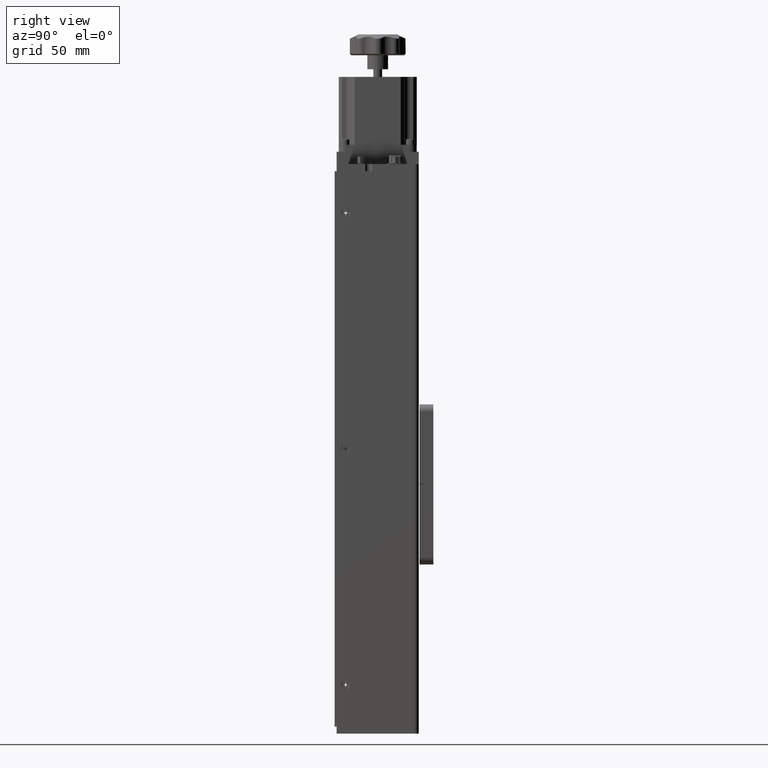
[diagram: clean part render]
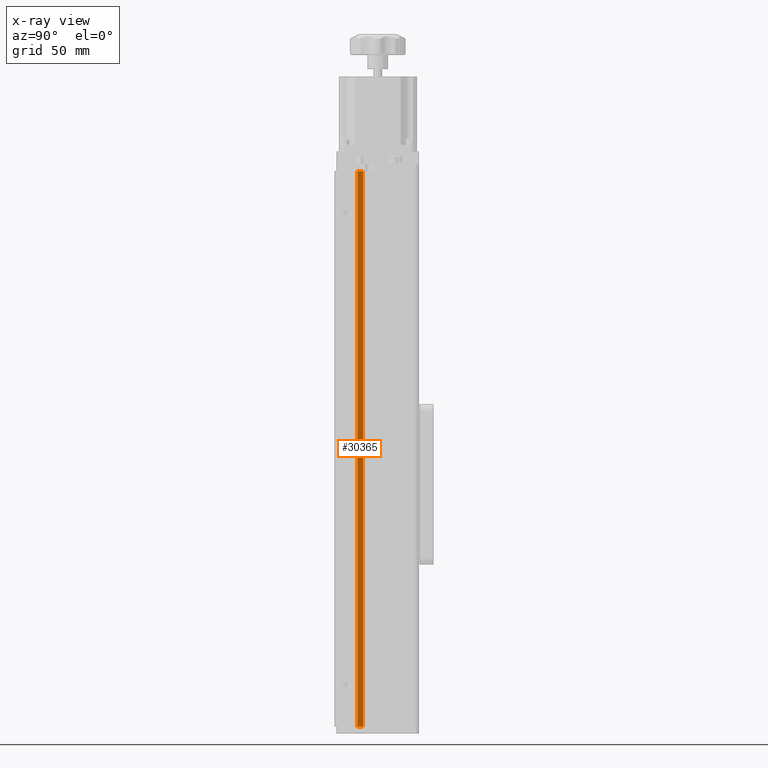
[diagram: x-ray — body ghosted, one internal face saturated and labeled with its STEP entity id]
A machine part, right view, then the same camera in x-ray: the body is ghosted and one INTERNAL B-rep face — a face not visible from any outside direction — is saturated and labeled: STEP entity #30365.
In plain terms, the highlighted planar face has unit normal (1, 0, -0).
Its self-contained STEP definition (entity closure, byte-faithful):
#1368 = VERTEX_POINT ( 'NONE', #25179 ) ;
#1400 = CARTESIAN_POINT ( 'NONE',  ( 56.71988329892532500, 10.39557601279240700, 136.7392992934879300 ) ) ;
#3234 = DIRECTION ( 'NONE',  ( -0.0000000000000000000, 0.0000000000000000000, -1.000000000000000000 ) ) ;
#5082 = LINE ( 'NONE', #19918, #31124 ) ;
#5949 = LINE ( 'NONE', #1400, #22964 ) ;
#6497 = PLANE ( 'NONE',  #37337 ) ;
#8709 = ORIENTED_EDGE ( 'NONE', *, *, #38665, .T. ) ;
#9966 = CARTESIAN_POINT ( 'NONE',  ( 56.71988329892532500, 6.395576012792368200, 136.7392992934879300 ) ) ;
#10040 = VERTEX_POINT ( 'NONE', #40353 ) ;
#10188 = CARTESIAN_POINT ( 'NONE',  ( 56.71988329892532500, 10.39557601279240700, 136.7392992934879300 ) ) ;
#10420 = EDGE_CURVE ( 'NONE', #16761, #1368, #34229, .T. ) ;
#12499 = CARTESIAN_POINT ( 'NONE',  ( 56.71988329892532500, 6.395576012792368200, 136.7392992934879300 ) ) ;
#14509 = ORIENTED_EDGE ( 'NONE', *, *, #10420, .F. ) ;
#16165 = VECTOR ( 'NONE', #33734, 1000.000000000000000 ) ;
#16761 = VERTEX_POINT ( 'NONE', #12499 ) ;
#19918 = CARTESIAN_POINT ( 'NONE',  ( 56.71988329892532500, 10.39557601279240700, 136.7392992934879300 ) ) ;
#20483 = ORIENTED_EDGE ( 'NONE', *, *, #31890, .F. ) ;
#22964 = VECTOR ( 'NONE', #28743, 1000.000000000000000 ) ;
#23579 = DIRECTION ( 'NONE',  ( 1.000000000000000000, 0.0000000000000000000, -0.0000000000000000000 ) ) ;
#25082 = ORIENTED_EDGE ( 'NONE', *, *, #28123, .T. ) ;
#25179 = CARTESIAN_POINT ( 'NONE',  ( 56.71988329892532500, 6.395576012792368200, -262.2607007065120700 ) ) ;
#28123 = EDGE_CURVE ( 'NONE', #37215, #10040, #5082, .T. ) ;
#28743 = DIRECTION ( 'NONE',  ( 0.0000000000000000000, -1.000000000000000000, 0.0000000000000000000 ) ) ;
#30365 = ADVANCED_FACE ( 'NONE', ( #43999 ), #6497, .F. ) ;
#31124 = VECTOR ( 'NONE', #43732, 1000.000000000000000 ) ;
#31890 = EDGE_CURVE ( 'NONE', #37215, #16761, #5949, .T. ) ;
#33734 = DIRECTION ( 'NONE',  ( -0.0000000000000000000, -0.0000000000000000000, -1.000000000000000000 ) ) ;
#34229 = LINE ( 'NONE', #9966, #16165 ) ;
#34274 = CARTESIAN_POINT ( 'NONE',  ( 56.71988329892532500, 10.39557601279240700, -262.2607007065120700 ) ) ;
#36098 = LINE ( 'NONE', #34274, #44123 ) ;
#36815 = EDGE_LOOP ( 'NONE', ( #8709, #14509, #20483, #25082 ) ) ;
#37215 = VERTEX_POINT ( 'NONE', #10188 ) ;
#37337 = AXIS2_PLACEMENT_3D ( 'NONE', #43972, #23579, #3234 ) ;
#37656 = DIRECTION ( 'NONE',  ( 0.0000000000000000000, -1.000000000000000000, 0.0000000000000000000 ) ) ;
#38665 = EDGE_CURVE ( 'NONE', #10040, #1368, #36098, .T. ) ;
#40353 = CARTESIAN_POINT ( 'NONE',  ( 56.71988329892532500, 10.39557601279240700, -262.2607007065120700 ) ) ;
#43732 = DIRECTION ( 'NONE',  ( -0.0000000000000000000, -0.0000000000000000000, -1.000000000000000000 ) ) ;
#43972 = CARTESIAN_POINT ( 'NONE',  ( 56.71988329892532500, 10.39557601279240700, 136.7392992934879300 ) ) ;
#43999 = FACE_OUTER_BOUND ( 'NONE', #36815, .T. ) ;
#44123 = VECTOR ( 'NONE', #37656, 1000.000000000000000 ) ;